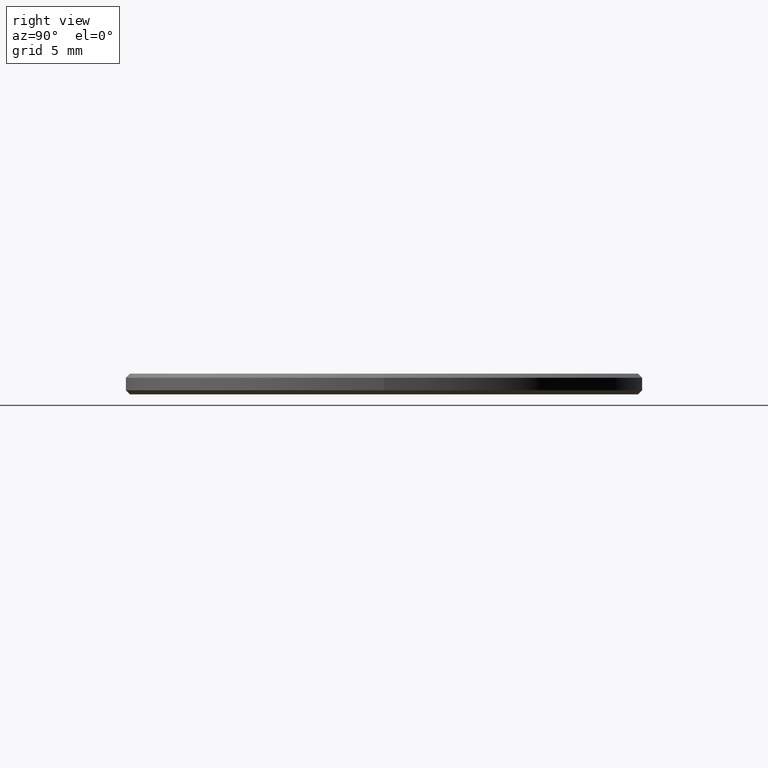
[diagram: clean part render]
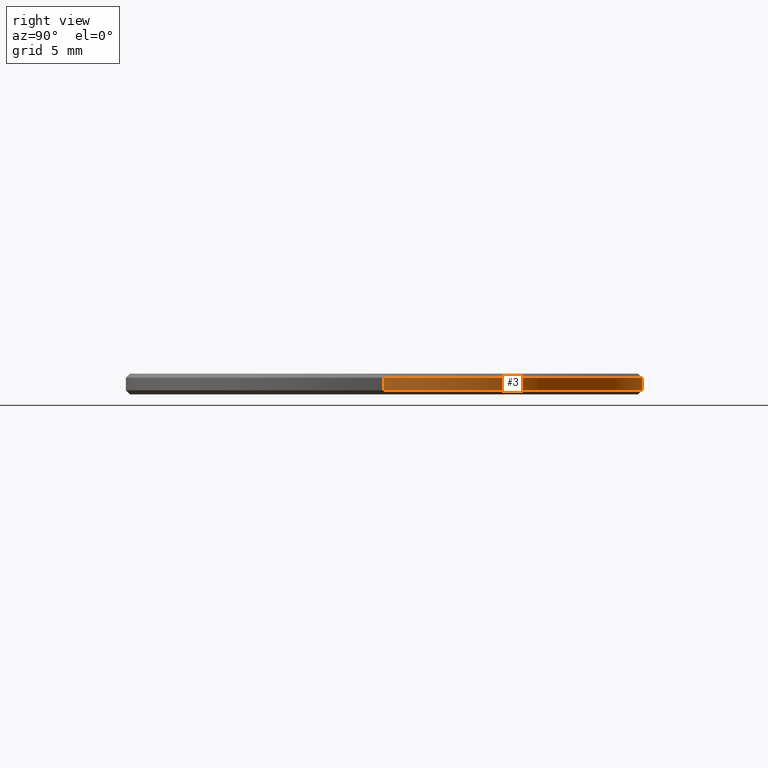
[diagram: same view with one face highlighted and labeled with its STEP entity id]
A machine part, right view. The second image highlights one B-rep face of the part: STEP entity #3.
In plain terms, the highlighted cylindrical surface (partial cylindrical patch) has radius 12.5 mm, axis along (-0, -0, -1).
Its self-contained STEP definition (entity closure, byte-faithful):
#3 = ADVANCED_FACE ( 'NONE', ( #101 ), #23, .T. ) ;
#6 = CARTESIAN_POINT ( 'NONE',  ( 0.000000000000000000, 0.000000000000000000, 0.8000000000000029310 ) ) ;
#9 = DIRECTION ( 'NONE',  ( -0.000000000000000000, -0.000000000000000000, -1.000000000000000000 ) ) ;
#10 = CARTESIAN_POINT ( 'NONE',  ( 12.50000000000000000, 1.530808498934191521E-15, 1.000000000000000000 ) ) ;
#14 = LINE ( 'NONE', #10, #15 ) ;
#15 = VECTOR ( 'NONE', #9, 1000.000000000000000 ) ;
#22 = ORIENTED_EDGE ( 'NONE', *, *, #80, .T. ) ;
#23 = CYLINDRICAL_SURFACE ( 'NONE', #188, 12.50000000000000000 ) ;
#46 = DIRECTION ( 'NONE',  ( 1.000000000000000000, 0.000000000000000000, 0.000000000000000000 ) ) ;
#54 = EDGE_CURVE ( 'NONE', #105, #79, #234, .T. ) ;
#59 = EDGE_CURVE ( 'NONE', #105, #115, #122, .T. ) ;
#60 = CARTESIAN_POINT ( 'NONE',  ( 0.000000000000000000, 0.000000000000000000, 0.1999999999999987899 ) ) ;
#62 = CARTESIAN_POINT ( 'NONE',  ( 0.000000000000000000, 0.000000000000000000, 1.000000000000000000 ) ) ;
#64 = DIRECTION ( 'NONE',  ( -0.000000000000000000, -0.000000000000000000, -1.000000000000000000 ) ) ;
#79 = VERTEX_POINT ( 'NONE', #209 ) ;
#80 = EDGE_CURVE ( 'NONE', #145, #115, #167, .T. ) ;
#98 = ORIENTED_EDGE ( 'NONE', *, *, #59, .F. ) ;
#99 = DIRECTION ( 'NONE',  ( 0.000000000000000000, 0.000000000000000000, -1.000000000000000000 ) ) ;
#101 = FACE_OUTER_BOUND ( 'NONE', #225, .T. ) ;
#104 = AXIS2_PLACEMENT_3D ( 'NONE', #60, #207, #46 ) ;
#105 = VERTEX_POINT ( 'NONE', #229 ) ;
#113 = ORIENTED_EDGE ( 'NONE', *, *, #54, .T. ) ;
#115 = VERTEX_POINT ( 'NONE', #195 ) ;
#122 = LINE ( 'NONE', #169, #240 ) ;
#136 = ORIENTED_EDGE ( 'NONE', *, *, #183, .T. ) ;
#145 = VERTEX_POINT ( 'NONE', #214 ) ;
#167 = CIRCLE ( 'NONE', #104, 12.50000000000000000 ) ;
#169 = CARTESIAN_POINT ( 'NONE',  ( -12.50000000000000000, 0.000000000000000000, 1.000000000000000000 ) ) ;
#174 = DIRECTION ( 'NONE',  ( -1.000000000000000000, 0.000000000000000000, 0.000000000000000000 ) ) ;
#183 = EDGE_CURVE ( 'NONE', #79, #145, #14, .T. ) ;
#188 = AXIS2_PLACEMENT_3D ( 'NONE', #62, #189, #174 ) ;
#189 = DIRECTION ( 'NONE',  ( -0.000000000000000000, -0.000000000000000000, -1.000000000000000000 ) ) ;
#195 = CARTESIAN_POINT ( 'NONE',  ( -12.50000000000000000, 0.000000000000000000, 0.1999999999999987899 ) ) ;
#202 = AXIS2_PLACEMENT_3D ( 'NONE', #6, #99, #226 ) ;
#207 = DIRECTION ( 'NONE',  ( -0.000000000000000000, -0.000000000000000000, 1.000000000000000000 ) ) ;
#209 = CARTESIAN_POINT ( 'NONE',  ( 12.50000000000000000, 1.530808498934191521E-15, 0.8000000000000029310 ) ) ;
#214 = CARTESIAN_POINT ( 'NONE',  ( 12.50000000000000000, 1.530808498934191521E-15, 0.1999999999999987899 ) ) ;
#225 = EDGE_LOOP ( 'NONE', ( #113, #136, #22, #98 ) ) ;
#226 = DIRECTION ( 'NONE',  ( 1.000000000000000000, 0.000000000000000000, 0.000000000000000000 ) ) ;
#229 = CARTESIAN_POINT ( 'NONE',  ( -12.50000000000000000, 0.000000000000000000, 0.8000000000000029310 ) ) ;
#234 = CIRCLE ( 'NONE', #202, 12.50000000000000000 ) ;
#240 = VECTOR ( 'NONE', #64, 1000.000000000000000 ) ;